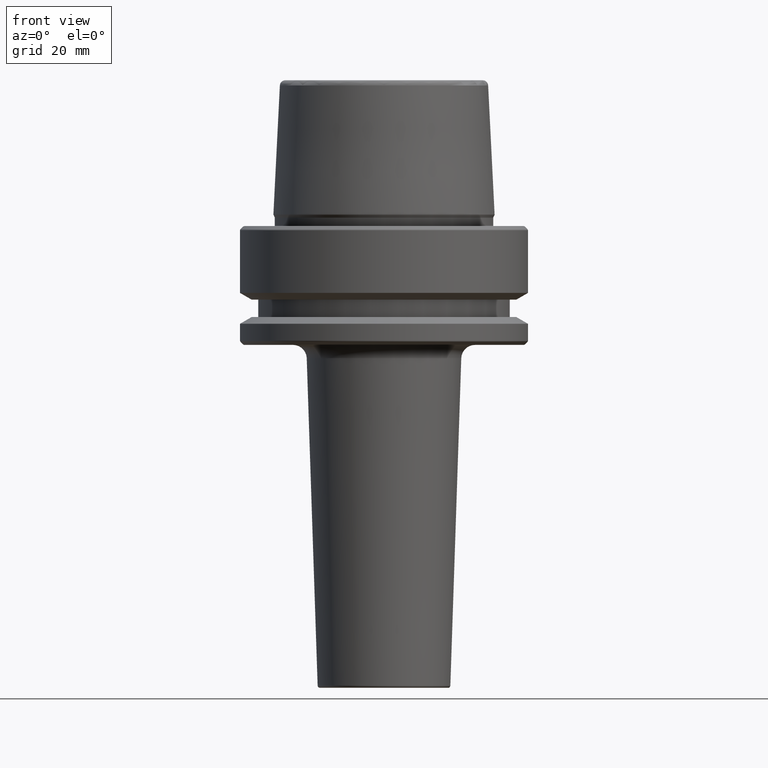
[diagram: clean part render]
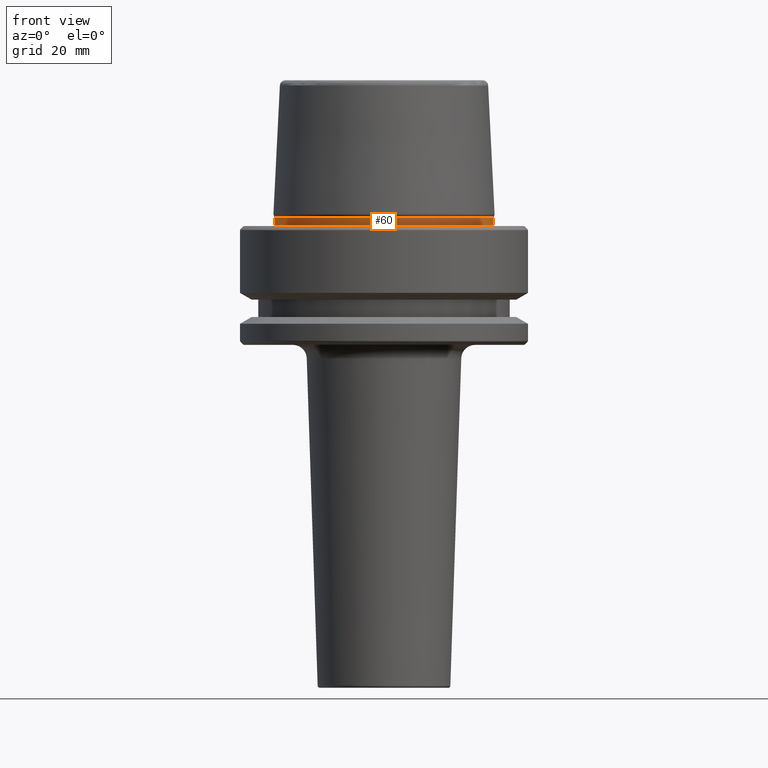
[diagram: same view with one face highlighted and labeled with its STEP entity id]
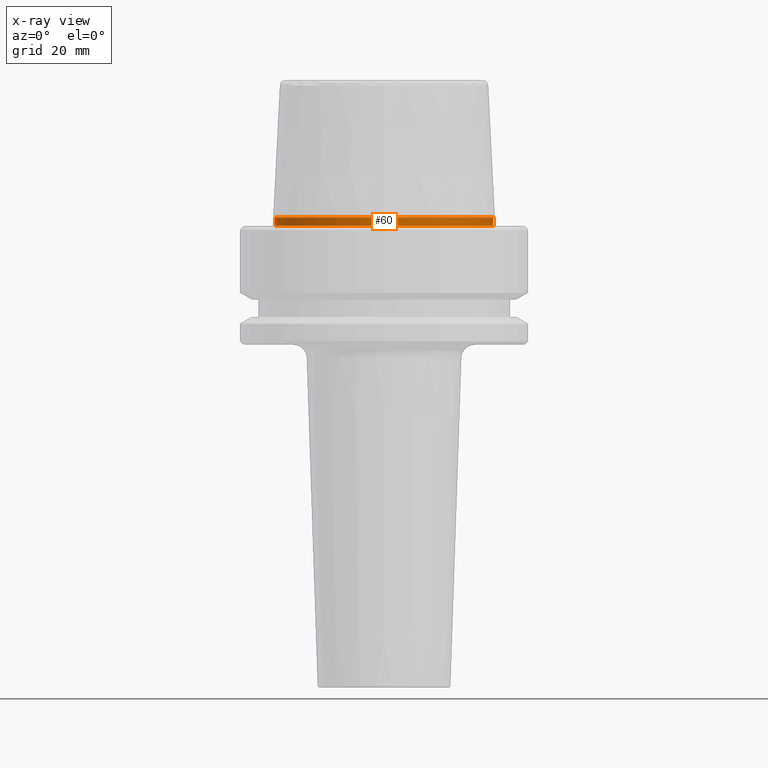
[diagram: x-ray of the same camera — body ghosted, the highlighted face saturated]
A machine part, front view. The second image highlights one B-rep face of the part: STEP entity #60.
The next image is the same camera in x-ray: the body ghosted, the highlighted face saturated — about 0% of this face is hidden behind the body in this view.
In plain terms, the highlighted cylindrical surface (partial cylindrical patch) has radius 23.89 mm, axis along (-0, -0, 1).
Its self-contained STEP definition (entity closure, byte-faithful):
#12 = VERTEX_POINT ( 'NONE', #287 ) ;
#28 = DIRECTION ( 'NONE',  ( -0.0000000000000000000, -0.0000000000000000000, 1.000000000000000000 ) ) ;
#60 = ADVANCED_FACE ( 'NONE', ( #835 ), #599, .T. ) ;
#70 = ORIENTED_EDGE ( 'NONE', *, *, #206, .F. ) ;
#109 = DIRECTION ( 'NONE',  ( -0.0000000000000000000, -0.0000000000000000000, 1.000000000000000000 ) ) ;
#127 = DIRECTION ( 'NONE',  ( -0.0000000000000000000, -0.0000000000000000000, 1.000000000000000000 ) ) ;
#145 = CARTESIAN_POINT ( 'NONE',  ( -23.89000000000000100, 2.925681203163027000E-015, 78.96908074195309300 ) ) ;
#151 = CARTESIAN_POINT ( 'NONE',  ( 0.0000000000000000000, 0.0000000000000000000, 0.1312552021302954000 ) ) ;
#162 = EDGE_CURVE ( 'NONE', #943, #596, #209, .T. ) ;
#180 = EDGE_CURVE ( 'NONE', #943, #338, #275, .T. ) ;
#194 = AXIS2_PLACEMENT_3D ( 'NONE', #151, #978, #969 ) ;
#206 = EDGE_CURVE ( 'NONE', #596, #12, #540, .T. ) ;
#209 = LINE ( 'NONE', #145, #1231 ) ;
#272 = DIRECTION ( 'NONE',  ( 1.000000000000000000, 0.0000000000000000000, 0.0000000000000000000 ) ) ;
#275 = CIRCLE ( 'NONE', #194, 23.89000000000000400 ) ;
#287 = CARTESIAN_POINT ( 'NONE',  ( 23.89000000000000100, 0.0000000000000000000, 1.845119734979375100 ) ) ;
#338 = VERTEX_POINT ( 'NONE', #882 ) ;
#350 = CARTESIAN_POINT ( 'NONE',  ( 0.0000000000000000000, 0.0000000000000000000, 1.845119734979375100 ) ) ;
#388 = CARTESIAN_POINT ( 'NONE',  ( -23.89000000000000100, 2.944380070784114200E-015, 1.845119734979375100 ) ) ;
#496 = LINE ( 'NONE', #1096, #1170 ) ;
#521 = DIRECTION ( 'NONE',  ( 1.000000000000000000, 0.0000000000000000000, 0.0000000000000000000 ) ) ;
#540 = CIRCLE ( 'NONE', #875, 23.89000000000000100 ) ;
#596 = VERTEX_POINT ( 'NONE', #388 ) ;
#599 = CYLINDRICAL_SURFACE ( 'NONE', #1198, 23.89000000000000100 ) ;
#745 = ORIENTED_EDGE ( 'NONE', *, *, #162, .F. ) ;
#835 = FACE_OUTER_BOUND ( 'NONE', #1161, .T. ) ;
#875 = AXIS2_PLACEMENT_3D ( 'NONE', #350, #972, #272 ) ;
#882 = CARTESIAN_POINT ( 'NONE',  ( 23.89000000000000400, 0.0000000000000000000, 0.1312552021302954000 ) ) ;
#919 = EDGE_CURVE ( 'NONE', #338, #12, #496, .T. ) ;
#943 = VERTEX_POINT ( 'NONE', #991 ) ;
#969 = DIRECTION ( 'NONE',  ( 1.000000000000000000, 0.0000000000000000000, 0.0000000000000000000 ) ) ;
#972 = DIRECTION ( 'NONE',  ( -0.0000000000000000000, -0.0000000000000000000, 1.000000000000000000 ) ) ;
#978 = DIRECTION ( 'NONE',  ( -0.0000000000000000000, -0.0000000000000000000, 1.000000000000000000 ) ) ;
#980 = ORIENTED_EDGE ( 'NONE', *, *, #919, .T. ) ;
#991 = CARTESIAN_POINT ( 'NONE',  ( -23.89000000000000400, 2.961613815265650600E-015, 0.1312552021302954000 ) ) ;
#1096 = CARTESIAN_POINT ( 'NONE',  ( 23.89000000000000100, 0.0000000000000000000, 78.96908074195309300 ) ) ;
#1160 = ORIENTED_EDGE ( 'NONE', *, *, #180, .T. ) ;
#1161 = EDGE_LOOP ( 'NONE', ( #745, #1160, #980, #70 ) ) ;
#1170 = VECTOR ( 'NONE', #127, 1000.000000000000000 ) ;
#1187 = CARTESIAN_POINT ( 'NONE',  ( 0.0000000000000000000, 0.0000000000000000000, 78.96908074195309300 ) ) ;
#1198 = AXIS2_PLACEMENT_3D ( 'NONE', #1187, #28, #521 ) ;
#1231 = VECTOR ( 'NONE', #109, 1000.000000000000000 ) ;